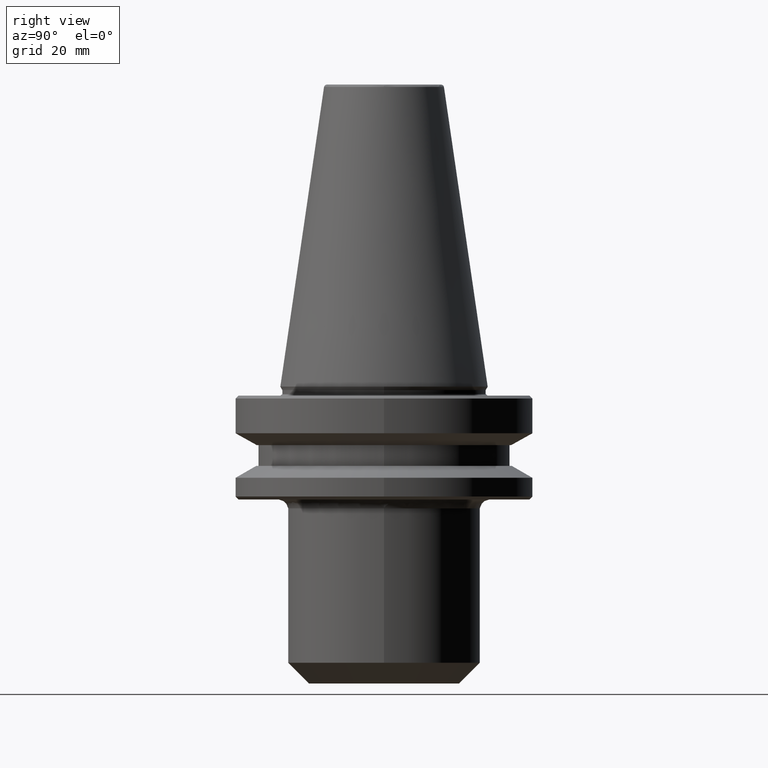
[diagram: clean part render]
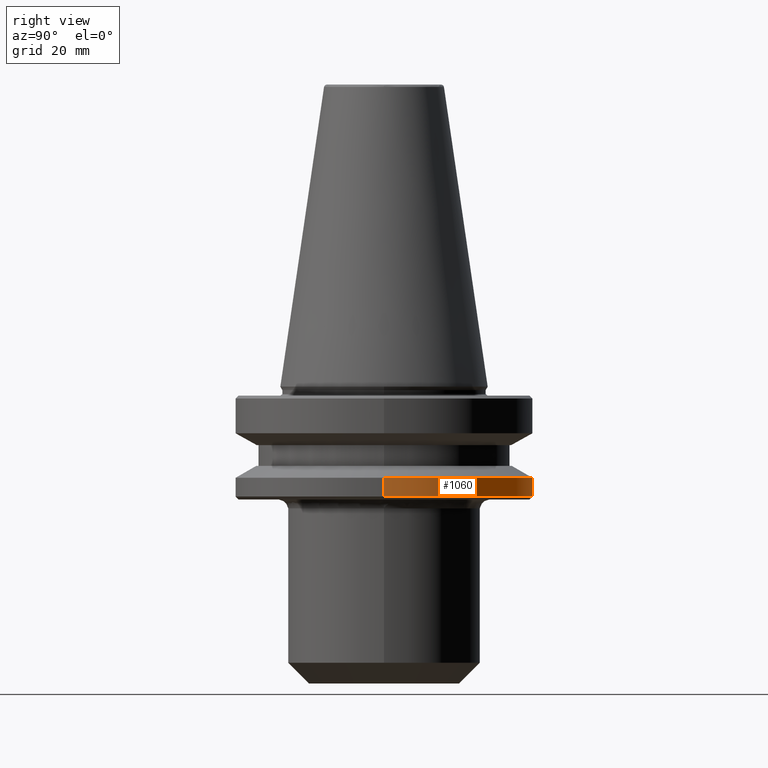
[diagram: same view with one face highlighted and labeled with its STEP entity id]
A machine part, right view. The second image highlights one B-rep face of the part: STEP entity #1060.
In plain terms, the highlighted cylindrical surface (partial cylindrical patch) has radius 50 mm, axis along (0, 0, 1).
Its self-contained STEP definition (entity closure, byte-faithful):
#50 = ORIENTED_EDGE ( 'NONE', *, *, #116, .T. ) ;
#84 = AXIS2_PLACEMENT_3D ( 'NONE', #801, #796, #1177 ) ;
#113 = CARTESIAN_POINT ( 'NONE',  ( -50.00000000000000000, 6.123233995736766100E-015, -37.00000000000002100 ) ) ;
#116 = EDGE_CURVE ( 'NONE', #325, #788, #459, .T. ) ;
#150 = ORIENTED_EDGE ( 'NONE', *, *, #230, .F. ) ;
#189 = DIRECTION ( 'NONE',  ( 0.0000000000000000000, 0.0000000000000000000, 1.000000000000000000 ) ) ;
#201 = CARTESIAN_POINT ( 'NONE',  ( 0.0000000000000000000, 50.00000000000000000, -30.69977999677324500 ) ) ;
#226 = DIRECTION ( 'NONE',  ( 0.0000000000000000000, 0.0000000000000000000, 1.000000000000000000 ) ) ;
#230 = EDGE_CURVE ( 'NONE', #1355, #1078, #1309, .T. ) ;
#254 = DIRECTION ( 'NONE',  ( 0.0000000000000000000, 0.0000000000000000000, 1.000000000000000000 ) ) ;
#263 = EDGE_CURVE ( 'NONE', #1274, #1355, #810, .T. ) ;
#290 = CARTESIAN_POINT ( 'NONE',  ( 0.0000000000000000000, 0.0000000000000000000, -30.69977999677324500 ) ) ;
#325 = VERTEX_POINT ( 'NONE', #113 ) ;
#360 = FACE_OUTER_BOUND ( 'NONE', #1238, .T. ) ;
#390 = DIRECTION ( 'NONE',  ( -1.000000000000000000, -8.881784197001252300E-016, 0.0000000000000000000 ) ) ;
#440 = CIRCLE ( 'NONE', #1226, 50.00000000000000000 ) ;
#449 = CARTESIAN_POINT ( 'NONE',  ( 50.00000000000000000, 0.0000000000000000000, -30.69977999677324500 ) ) ;
#459 = LINE ( 'NONE', #987, #527 ) ;
#527 = VECTOR ( 'NONE', #713, 1000.000000000000000 ) ;
#565 = VECTOR ( 'NONE', #254, 1000.000000000000000 ) ;
#589 = AXIS2_PLACEMENT_3D ( 'NONE', #863, #226, #959 ) ;
#624 = EDGE_CURVE ( 'NONE', #1078, #788, #440, .T. ) ;
#643 = ORIENTED_EDGE ( 'NONE', *, *, #263, .F. ) ;
#713 = DIRECTION ( 'NONE',  ( 0.0000000000000000000, 0.0000000000000000000, 1.000000000000000000 ) ) ;
#735 = CARTESIAN_POINT ( 'NONE',  ( 0.0000000000000000000, 0.0000000000000000000, 124.5046326327850600 ) ) ;
#747 = AXIS2_PLACEMENT_3D ( 'NONE', #735, #189, #1336 ) ;
#788 = VERTEX_POINT ( 'NONE', #1364 ) ;
#796 = DIRECTION ( 'NONE',  ( -0.0000000000000000000, -0.0000000000000000000, 1.000000000000000000 ) ) ;
#801 = CARTESIAN_POINT ( 'NONE',  ( 0.0000000000000000000, 0.0000000000000000000, -30.69977999677324500 ) ) ;
#810 = LINE ( 'NONE', #817, #565 ) ;
#817 = CARTESIAN_POINT ( 'NONE',  ( 50.00000000000000000, 0.0000000000000000000, 124.5046326327850600 ) ) ;
#863 = CARTESIAN_POINT ( 'NONE',  ( 0.0000000000000000000, 0.0000000000000000000, -37.00000000000002100 ) ) ;
#959 = DIRECTION ( 'NONE',  ( 1.000000000000000000, 0.0000000000000000000, 0.0000000000000000000 ) ) ;
#987 = CARTESIAN_POINT ( 'NONE',  ( -50.00000000000000000, 6.123233995736766100E-015, 124.5046326327850600 ) ) ;
#1011 = DIRECTION ( 'NONE',  ( -0.0000000000000000000, -0.0000000000000000000, 1.000000000000000000 ) ) ;
#1033 = ORIENTED_EDGE ( 'NONE', *, *, #624, .F. ) ;
#1052 = CIRCLE ( 'NONE', #589, 50.00000000000000000 ) ;
#1060 = ADVANCED_FACE ( 'NONE', ( #360 ), #1120, .T. ) ;
#1078 = VERTEX_POINT ( 'NONE', #201 ) ;
#1120 = CYLINDRICAL_SURFACE ( 'NONE', #747, 50.00000000000000000 ) ;
#1177 = DIRECTION ( 'NONE',  ( -1.000000000000000000, 0.0000000000000000000, 0.0000000000000000000 ) ) ;
#1226 = AXIS2_PLACEMENT_3D ( 'NONE', #290, #1011, #390 ) ;
#1238 = EDGE_LOOP ( 'NONE', ( #1317, #50, #1033, #150, #643 ) ) ;
#1274 = VERTEX_POINT ( 'NONE', #1356 ) ;
#1307 = EDGE_CURVE ( 'NONE', #1274, #325, #1052, .T. ) ;
#1309 = CIRCLE ( 'NONE', #84, 50.00000000000000000 ) ;
#1317 = ORIENTED_EDGE ( 'NONE', *, *, #1307, .T. ) ;
#1336 = DIRECTION ( 'NONE',  ( 1.000000000000000000, 0.0000000000000000000, 0.0000000000000000000 ) ) ;
#1355 = VERTEX_POINT ( 'NONE', #449 ) ;
#1356 = CARTESIAN_POINT ( 'NONE',  ( 50.00000000000000000, 0.0000000000000000000, -37.00000000000002100 ) ) ;
#1364 = CARTESIAN_POINT ( 'NONE',  ( -50.00000000000000000, 6.123233995736766100E-015, -30.69977999677324500 ) ) ;